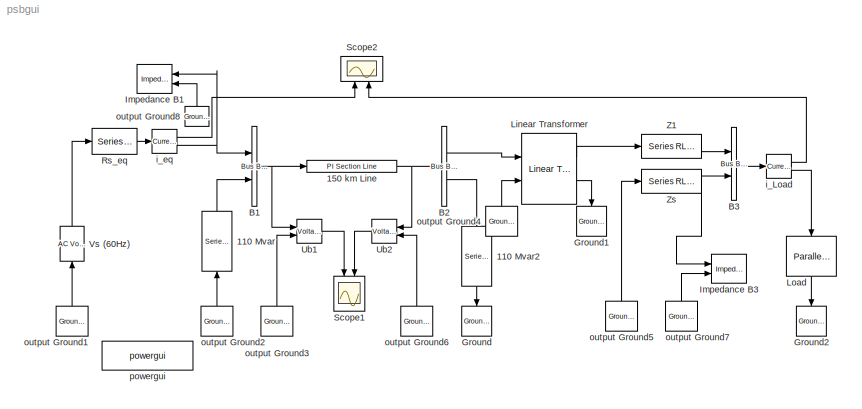
MODEL psbgui
KIND model
CONFIG InitFcn = powericon('psbinitsys',bdroot);
BLOCK [Reference] 110 Mvar  REF=powerlib2/Elements/Series RLC Load
  PSBOutputType = 1
  Ports = [1, 1]
  SourceBlock = powerlib2/Elements/Series RLC Load
  SourceType = Series RLC Load
  Tag = PoWeRsYsTeMbLoCk
  a = 735000/sqrt(3)
  b = 60
  c = 110e6/300
  d = 110e6
  e = 0
  mesure = None
BLOCK [Reference] 110 Mvar2  REF=powerlib2/Elements/Series RLC Load
  PSBOutputType = 1
  Ports = [1, 1]
  SourceBlock = powerlib2/Elements/Series RLC Load
  SourceType = Series RLC Load
  Tag = PoWeRsYsTeMbLoCk
  a = 735000/sqrt(3)
  b = 60
  c = 110e6/300
  d = 110e6
  e = 0
  mesure = None
BLOCK [Reference] 150 km Line  REF=powerlib2/Elements/PI Section Line
  PSBOutputType = 1
  Ports = [1, 1]
  SourceBlock = powerlib2/Elements/PI Section Line
  SourceType = Pi Section Line
  Tag = PoWeRsYsTeMbLoCk
  a = 0.011
  b = 0.8674e-03
  c = 13.41e-09
  d = 150
  e = 2
  f = 60
  mesure = None
BLOCK [Reference] B1  REF=powerlib2/Connectors/Bus Bar (vert)
  PSBOutputType = 11111111111111111111111111111111111111111111111111111111111111111111111111111111111111111
  Ports = [2, 1]
  SourceBlock = powerlib2/Connectors/Bus Bar (vert)
  SourceType = Bus Bar
  Tag = PoWeRsYsTeMbLoCk
  entrees = 2
  sorties = 1
BLOCK [Reference] B2  REF=powerlib2/Connectors/Bus Bar (vert)
  PSBOutputType = 11111111111111111111111111111111111111111111111111111111111111111111111111111111111111111
  Ports = [1, 2]
  SourceBlock = powerlib2/Connectors/Bus Bar (vert)
  SourceType = Bus Bar
  Tag = PoWeRsYsTeMbLoCk
  entrees = 1
  sorties = 2
BLOCK [Reference] B3  REF=powerlib2/Connectors/Bus Bar (vert)
  PSBOutputType = 11111111111111111111111111111111111111111111111111111111111111111111111111111111111111111
  Ports = [2, 1]
  SourceBlock = powerlib2/Connectors/Bus Bar (vert)
  SourceType = Bus Bar
  Tag = PoWeRsYsTeMbLoCk
  entrees = 2
  sorties = 1
BLOCK [Reference] Ground  REF=powerlib2/Connectors/Ground (input)
  Ports = [1]
  SourceBlock = powerlib2/Connectors/Ground (input)
  SourceType = Ground
  Tag = PoWeRsYsTeMbLoCk
BLOCK [Reference] Ground1  REF=powerlib2/Connectors/Ground (input)
  Ports = [1]
  SourceBlock = powerlib2/Connectors/Ground (input)
  SourceType = Ground
  Tag = PoWeRsYsTeMbLoCk
BLOCK [Reference] Ground2  REF=powerlib2/Connectors/Ground (input)
  Ports = [1]
  SourceBlock = powerlib2/Connectors/Ground (input)
  SourceType = Ground
  Tag = PoWeRsYsTeMbLoCk
BLOCK [Reference] Impedance B1  REF=powerlib2/Measurements/Impedance Measurement
  Ports = [2]
  SourceBlock = powerlib2/Measurements/Impedance Measurement
  SourceType = Impedance Measurement
  Tag = PoWeRsYsTeMbLoCk
  kz = 1
BLOCK [Reference] Impedance B3  REF=powerlib2/Measurements/Impedance Measurement
  Ports = [2]
  SourceBlock = powerlib2/Measurements/Impedance Measurement
  SourceType = Impedance Measurement
  Tag = PoWeRsYsTeMbLoCk
  kz = 1
BLOCK [Reference] Linear Transformer  REF=powerlib2/Elements/Linear Transformer
  PSBOutputType = 1111
  Ports = [2, 2]
  SourceBlock = powerlib2/Elements/Linear Transformer
  SourceType = Linear Transformer
  Tag = PoWeRsYsTeMbLoCk
  a = [750e6/3,60]
  b = [735000/sqrt(3), 0.001 ,0.15]
  c = [315000/sqrt(3), 0.001,0]
  d = [315000/sqrt(3), 0.001,0]
  e = [500 500]
  mesure = None
  w3check = off
BLOCK [Reference] Load  REF=powerlib2/Elements/Parallel RLC Load
  PSBOutputType = 1
  Ports = [1, 1]
  SourceBlock = powerlib2/Elements/Parallel RLC Load
  SourceType = Parallel RLC Load
  Tag = PoWeRsYsTeMbLoCk
  a = 315000/sqrt(3)
  b = 60
  c = 200e6
  d = 0
  e = 50e6
  mesure = None
BLOCK [Reference] Rs_eq  REF=powerlib2/Elements/Series RLC Branch
  PSBOutputType = 1
  Ports = [1, 1]
  SourceBlock = powerlib2/Elements/Series RLC Branch
  SourceType = Series RLC Branch
  Tag = PoWeRsYsTeMbLoCk
  a = 2
  b = 0
  c = inf
  mesure = None
BLOCK [Scope] Scope1
  DataFormat = StructureWithTime
  NumInputPorts = 2
  Ports = [2]
  TimeRange = 0.05
  YMax = 1000000~1000000
  YMin = -1000000~-1000000
  ZoomMode = xonly
BLOCK [Scope] Scope2
  DataFormat = StructureWithTime
  NumInputPorts = 2
  Ports = [2]
  TimeRange = 0.05
  YMax = 3000~2000
  YMin = -1000~-2000
  ZoomMode = xonly
BLOCK [Reference] Ub1  REF=powerlib2/Measurements/Voltage Measurement
  OutputType = Magnitude
  PSBOutputType = 0
  PSBequivalent = 0
  PhasorSimulation = off
  Ports = [2, 1]
  SourceBlock = powerlib2/Measurements/Voltage Measurement
  SourceType = Voltage Measurement
  Tag = PoWeRsYsTeMmEaSuReMeNt
BLOCK [Reference] Ub2  REF=powerlib2/Measurements/Voltage Measurement
  OutputType = Magnitude
  PSBOutputType = 0
  PSBequivalent = 0
  PhasorSimulation = off
  Ports = [2, 1]
  SourceBlock = powerlib2/Measurements/Voltage Measurement
  SourceType = Voltage Measurement
  Tag = PoWeRsYsTeMmEaSuReMeNt
BLOCK [Reference] Vs (60Hz)  REF=powerlib2/Electrical\nSources/AC Voltage Source
  A = 735000/sqrt(3)*sqrt(2)
  F = 60
  P = 0
  PSBOutputType = 1
  Ports = [1, 1]
  SourceBlock = powerlib2/Electrical\nSources/AC Voltage Source
  SourceType = AC Voltage Source
  Tag = PoWeRsYsTeMbLoCk
  mesure = None
  stime = 0
BLOCK [Reference] Z1  REF=powerlib2/Elements/Series RLC Branch
  PSBOutputType = 1
  Ports = [1, 1]
  SourceBlock = powerlib2/Elements/Series RLC Branch
  SourceType = Series RLC Branch
  Tag = PoWeRsYsTeMbLoCk
  a = 0.734
  b = 0.02085
  c = inf
  mesure = None
BLOCK [Reference] Zs  REF=powerlib2/Elements/Series RLC Branch
  PSBOutputType = 1
  Ports = [1, 1]
  SourceBlock = powerlib2/Elements/Series RLC Branch
  SourceType = Series RLC Branch
  Tag = PoWeRsYsTeMbLoCk
  a = 11.0
  b = 0.2925
  c = inf
  mesure = None
BLOCK [Reference] i_Load  REF=powerlib2/Measurements/Current Measurement
  OutputType = Magnitude
  PSBOutputType = 01
  PSBequivalent = 0
  PhasorSimulation = off
  Ports = [1, 2]
  SourceBlock = powerlib2/Measurements/Current Measurement
  SourceType = Current Measurement
  Tag = PoWeRsYsTeMmEaSuReMeNt
BLOCK [Reference] i_eq  REF=powerlib2/Measurements/Current Measurement
  OutputType = Magnitude
  PSBOutputType = 01
  PSBequivalent = 0
  PhasorSimulation = off
  Ports = [1, 2]
  SourceBlock = powerlib2/Measurements/Current Measurement
  SourceType = Current Measurement
  Tag = PoWeRsYsTeMmEaSuReMeNt
BLOCK [Reference] output Ground1  REF=powerlib2/Connectors/Ground (output)
  PSBOutputType = 1
  Ports = [0, 1]
  SourceBlock = powerlib2/Connectors/Ground (output)
  SourceType = Ground
  Tag = PoWeRsYsTeMbLoCk
BLOCK [Reference] output Ground2  REF=powerlib2/Connectors/Ground (output)
  PSBOutputType = 1
  Ports = [0, 1]
  SourceBlock = powerlib2/Connectors/Ground (output)
  SourceType = Ground
  Tag = PoWeRsYsTeMbLoCk
BLOCK [Reference] output Ground3  REF=powerlib2/Connectors/Ground (output)
  PSBOutputType = 1
  Ports = [0, 1]
  SourceBlock = powerlib2/Connectors/Ground (output)
  SourceType = Ground
  Tag = PoWeRsYsTeMbLoCk
BLOCK [Reference] output Ground4  REF=powerlib2/Connectors/Ground (output)
  PSBOutputType = 1
  Ports = [0, 1]
  SourceBlock = powerlib2/Connectors/Ground (output)
  SourceType = Ground
  Tag = PoWeRsYsTeMbLoCk
BLOCK [Reference] output Ground5  REF=powerlib2/Connectors/Ground (output)
  PSBOutputType = 1
  Ports = [0, 1]
  SourceBlock = powerlib2/Connectors/Ground (output)
  SourceType = Ground
  Tag = PoWeRsYsTeMbLoCk
BLOCK [Reference] output Ground6  REF=powerlib2/Connectors/Ground (output)
  PSBOutputType = 1
  Ports = [0, 1]
  SourceBlock = powerlib2/Connectors/Ground (output)
  SourceType = Ground
  Tag = PoWeRsYsTeMbLoCk
BLOCK [Reference] output Ground7  REF=powerlib2/Connectors/Ground (output)
  PSBOutputType = 1
  Ports = [0, 1]
  SourceBlock = powerlib2/Connectors/Ground (output)
  SourceType = Ground
  Tag = PoWeRsYsTeMbLoCk
BLOCK [Reference] output Ground8  REF=powerlib2/Connectors/Ground (output)
  PSBOutputType = 1
  Ports = [0, 1]
  SourceBlock = powerlib2/Connectors/Ground (output)
  SourceType = Ground
  Tag = PoWeRsYsTeMbLoCk
BLOCK [Reference] powergui  REF=powerlib2/powergui
  DisplayStyle = off
  Frange = logspace(0,3,50)
  FreqAxis = off
  MaxFrequency = 1000
  Ports = []
  RmsSteady = 1
  SourceBlock = powerlib2/powergui
  SourceType = PSB option menu block
  StartTime = 0.0
  Ts = 0
  Xlog = off
  Ylog = off
  ZoomFFT = on
  cycles = 2
  display = off
  echomessages = off
  frequency = 60
  frequencyindice = 1
  frequencyindicesteady = 1
  fundamental = 60
  methode = off
  save = off
  variable = ZData
LINE 110 Mvar2:1 -> Ground:1
LINE 110 Mvar:1 -> B1:2
NET 150 km Line:1 -> B2:1, Ub2:1
NET B1:1 -> 150 km Line:1, Ub1:1
LINE B2:1 -> Linear Transformer:1
LINE B2:2 -> 110 Mvar2:1
LINE B3:1 -> i_Load:1
LINE Linear Transformer:1 -> Z1:1
LINE Linear Transformer:2 -> Ground1:1
LINE Load:1 -> Ground2:1
LINE Rs_eq:1 -> i_eq:1
LINE Ub1:1 -> Scope1:1
LINE Ub2:1 -> Scope1:2
LINE Vs (60Hz):1 -> Rs_eq:1
LINE Z1:1 -> B3:1
NET Zs:1 -> B3:2, Impedance B3:1
LINE i_Load:1 -> Scope2:2
LINE i_Load:2 -> Load:1
LINE i_eq:1 -> Scope2:1
NET i_eq:2 -> B1:1, Impedance B1:1
LINE output Ground1:1 -> Vs (60Hz):1
LINE output Ground2:1 -> 110 Mvar:1
LINE output Ground3:1 -> Ub1:2
LINE output Ground4:1 -> Linear Transformer:2
LINE output Ground5:1 -> Zs:1
LINE output Ground6:1 -> Ub2:2
LINE output Ground7:1 -> Impedance B3:2
LINE output Ground8:1 -> Impedance B1:2
note: NET lines group one-source signal fan-out (src -> all destinations, sorted); 1:1 wires keep LINE
